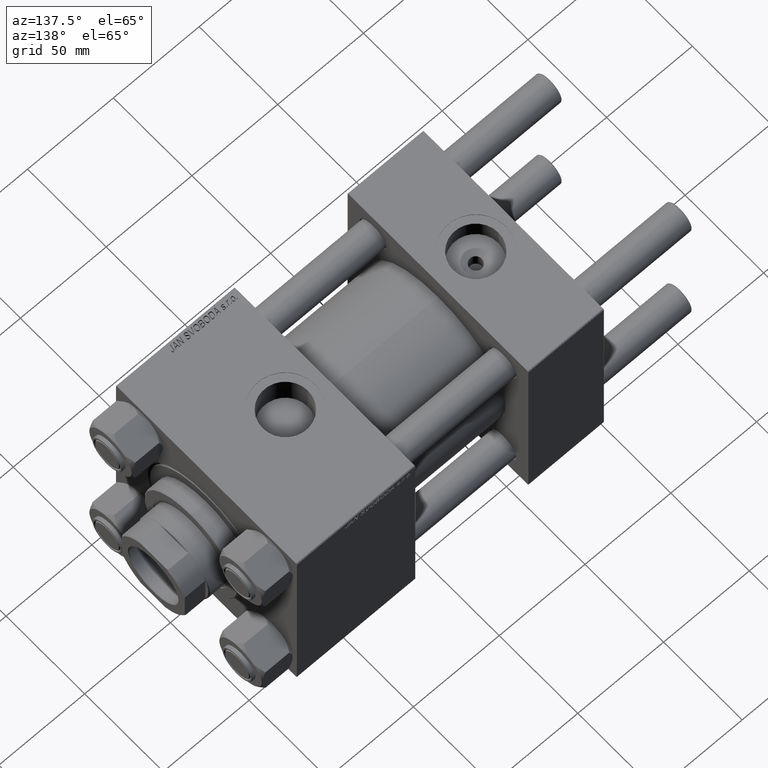
[diagram: clean part render]
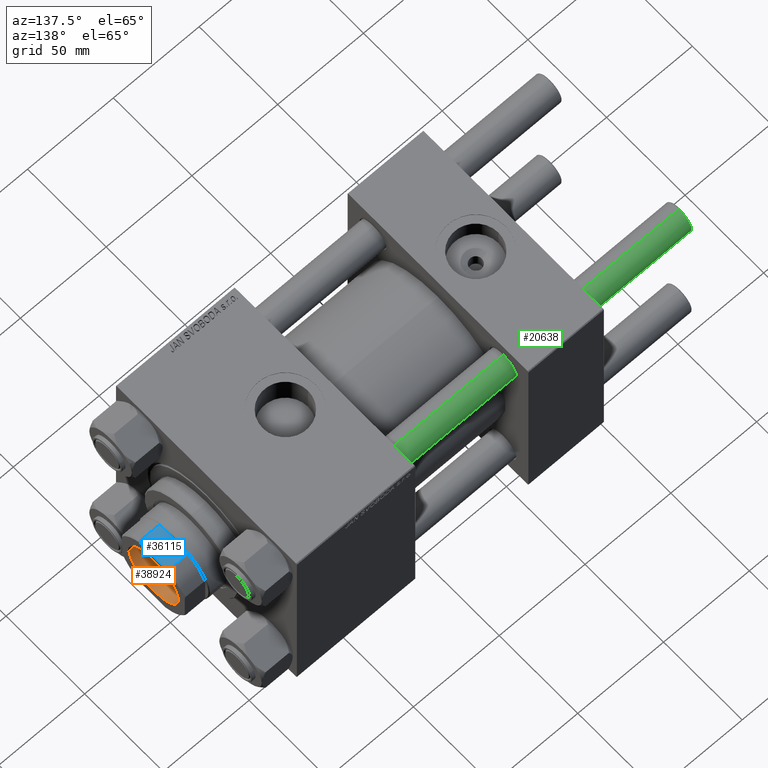
[diagram: same view with three faces highlighted in distinct colors, each labeled with its STEP entity id]
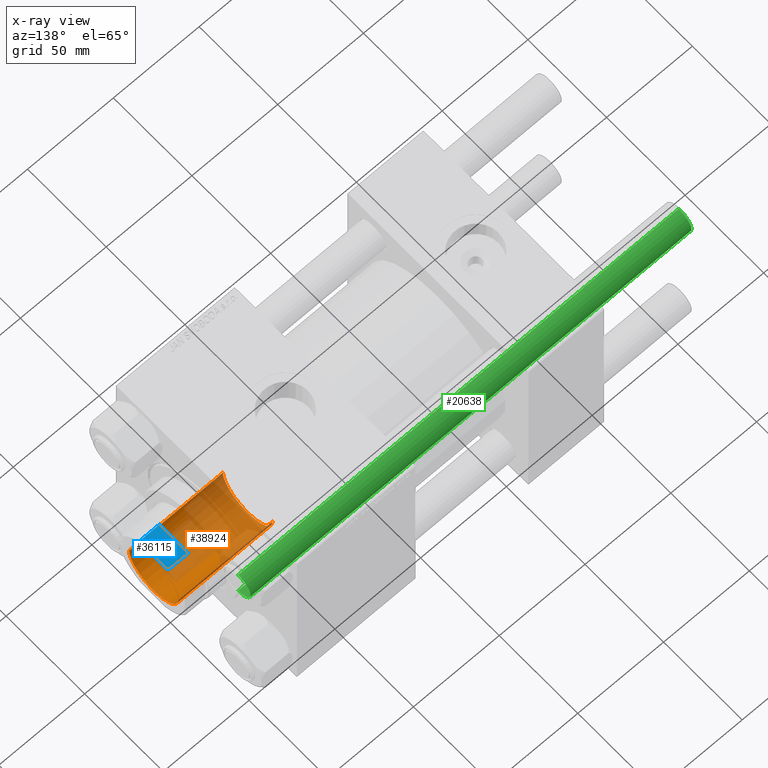
[diagram: x-ray of the same camera — body ghosted, the three highlighted faces saturated]
A machine part, auxiliary view with three faces highlighted in distinct colors.
The next image is the same camera in x-ray (body ghosted, the three faces saturated) — at least one of them is partly hidden behind the body in this view.
Their STEP definitions:

[orange] entity #38924 — the highlighted cylindrical surface (partial cylindrical patch) has radius 15.75 mm, axis along (1, 0, -0).
#182 = ORIENTED_EDGE ( 'NONE', *, *, #14030, .T. ) ;
#1155 = CARTESIAN_POINT ( 'NONE',  ( 15.74999999999999289, 0.000000000000000000, 166.0000000000000000 ) ) ;
#3708 = CARTESIAN_POINT ( 'NONE',  ( 15.74999999999998934, 0.000000000000000000, 111.0000000000000000 ) ) ;
#4863 = EDGE_CURVE ( 'NONE', #26412, #24646, #23676, .T. ) ;
#5233 = CIRCLE ( 'NONE', #12551, 15.74999999999998934 ) ;
#8029 = FACE_OUTER_BOUND ( 'NONE', #30684, .T. ) ;
#11110 = CARTESIAN_POINT ( 'NONE',  ( -15.74999999999999289, 1.928818708657080556E-15, 166.0000000000000000 ) ) ;
#11489 = AXIS2_PLACEMENT_3D ( 'NONE', #47128, #21899, #25474 ) ;
#12551 = AXIS2_PLACEMENT_3D ( 'NONE', #34554, #26951, #35066 ) ;
#14030 = EDGE_CURVE ( 'NONE', #30489, #26412, #40485, .T. ) ;
#15464 = EDGE_CURVE ( 'NONE', #30489, #23379, #5233, .T. ) ;
#21189 = DIRECTION ( 'NONE',  ( -0.000000000000000000, -0.000000000000000000, 1.000000000000000000 ) ) ;
#21195 = ORIENTED_EDGE ( 'NONE', *, *, #4863, .T. ) ;
#21899 = DIRECTION ( 'NONE',  ( -0.000000000000000000, -0.000000000000000000, 1.000000000000000000 ) ) ;
#23379 = VERTEX_POINT ( 'NONE', #43643 ) ;
#23676 = CIRCLE ( 'NONE', #28539, 15.74999999999999289 ) ;
#24646 = VERTEX_POINT ( 'NONE', #42781 ) ;
#25474 = DIRECTION ( 'NONE',  ( 1.000000000000000000, 0.000000000000000000, 0.000000000000000000 ) ) ;
#25491 = CARTESIAN_POINT ( 'NONE',  ( 0.000000000000000000, 0.000000000000000000, 165.6999999999999886 ) ) ;
#26412 = VERTEX_POINT ( 'NONE', #34024 ) ;
#26951 = DIRECTION ( 'NONE',  ( -0.000000000000000000, -0.000000000000000000, 1.000000000000000000 ) ) ;
#27387 = LINE ( 'NONE', #11110, #45415 ) ;
#28539 = AXIS2_PLACEMENT_3D ( 'NONE', #25491, #40963, #33360 ) ;
#30489 = VERTEX_POINT ( 'NONE', #3708 ) ;
#30684 = EDGE_LOOP ( 'NONE', ( #46367, #42967, #182, #21195 ) ) ;
#31266 = EDGE_CURVE ( 'NONE', #23379, #24646, #27387, .T. ) ;
#33360 = DIRECTION ( 'NONE',  ( 1.000000000000000000, 0.000000000000000000, 0.000000000000000000 ) ) ;
#34024 = CARTESIAN_POINT ( 'NONE',  ( 15.74999999999999289, 0.000000000000000000, 165.6999999999999886 ) ) ;
#34554 = CARTESIAN_POINT ( 'NONE',  ( 0.000000000000000000, 0.000000000000000000, 111.0000000000000000 ) ) ;
#35066 = DIRECTION ( 'NONE',  ( 1.000000000000000000, 0.000000000000000000, 0.000000000000000000 ) ) ;
#35468 = CYLINDRICAL_SURFACE ( 'NONE', #11489, 15.74999999999999289 ) ;
#38485 = VECTOR ( 'NONE', #21189, 1000.000000000000000 ) ;
#38924 = ADVANCED_FACE ( 'NONE', ( #8029 ), #35468, .F. ) ;
#40485 = LINE ( 'NONE', #1155, #38485 ) ;
#40963 = DIRECTION ( 'NONE',  ( 0.000000000000000000, 0.000000000000000000, 1.000000000000000000 ) ) ;
#42091 = DIRECTION ( 'NONE',  ( -0.000000000000000000, -0.000000000000000000, 1.000000000000000000 ) ) ;
#42781 = CARTESIAN_POINT ( 'NONE',  ( -15.74999999999999289, 1.928818708657080556E-15, 165.6999999999999886 ) ) ;
#42967 = ORIENTED_EDGE ( 'NONE', *, *, #15464, .F. ) ;
#43643 = CARTESIAN_POINT ( 'NONE',  ( -15.74999999999998934, 1.928818708657080161E-15, 111.0000000000000000 ) ) ;
#45415 = VECTOR ( 'NONE', #42091, 1000.000000000000000 ) ;
#46367 = ORIENTED_EDGE ( 'NONE', *, *, #31266, .F. ) ;
#47128 = CARTESIAN_POINT ( 'NONE',  ( 0.000000000000000000, 0.000000000000000000, 166.0000000000000000 ) ) ;

[blue] entity #36115 — the highlighted planar face has unit normal (-0, 0, -1).
#225 = LINE ( 'NONE', #15692, #49082 ) ;
#1440 = CARTESIAN_POINT ( 'NONE',  ( 8.318618722654486319, -20.00000000000000000, 165.8426607129352703 ) ) ;
#2146 = CARTESIAN_POINT ( 'NONE',  ( -7.889866919029998371, -20.00000000000000000, 166.0000000000000000 ) ) ;
#2383 = CARTESIAN_POINT ( 'NONE',  ( -9.165151389911676105, -20.00000000000000000, -0.001000000000001000089 ) ) ;
#2521 = CARTESIAN_POINT ( 'NONE',  ( 9.165151389911676105, -20.00000000000000000, 154.0000000000000284 ) ) ;
#4310 = ORIENTED_EDGE ( 'NONE', *, *, #18332, .T. ) ;
#4485 = CARTESIAN_POINT ( 'NONE',  ( 9.165151389911676105, -20.00000000000000000, -0.001000000000001000089 ) ) ;
#4620 = CARTESIAN_POINT ( 'NONE',  ( 9.165151389911676105, -20.00000000000000000, 165.5000000000000284 ) ) ;
#5634 = CARTESIAN_POINT ( 'NONE',  ( -19.99999999999999645, -20.00000000000000000, 166.0000000000000000 ) ) ;
#6193 = LINE ( 'NONE', #2383, #34897 ) ;
#8677 = ORIENTED_EDGE ( 'NONE', *, *, #47402, .T. ) ;
#10044 = VERTEX_POINT ( 'NONE', #2521 ) ;
#11008 = CARTESIAN_POINT ( 'NONE',  ( -8.743570658524445705, -20.00000000000000000, 165.6756296011925258 ) ) ;
#11269 = EDGE_LOOP ( 'NONE', ( #29038, #15241, #37007, #8677, #29980, #4310 ) ) ;
#14812 = CARTESIAN_POINT ( 'NONE',  ( -9.165151389911676105, -20.00000000000000000, 165.5000000000000853 ) ) ;
#14821 = CARTESIAN_POINT ( 'NONE',  ( 7.889866919029868697, -20.00000000000000000, 166.0000000000000000 ) ) ;
#15241 = ORIENTED_EDGE ( 'NONE', *, *, #29536, .T. ) ;
#15282 = DIRECTION ( 'NONE',  ( 0.000000000000000000, 1.000000000000000000, 0.000000000000000000 ) ) ;
#15692 = CARTESIAN_POINT ( 'NONE',  ( -19.99999999999999645, -20.00000000000000000, 154.0000000000000000 ) ) ;
#16145 = DIRECTION ( 'NONE',  ( -0.000000000000000000, -0.000000000000000000, 1.000000000000000000 ) ) ;
#16676 = CARTESIAN_POINT ( 'NONE',  ( 9.165151389911676105, -20.00000000000000000, 165.5000000000000284 ) ) ;
#17415 = CARTESIAN_POINT ( 'NONE',  ( 8.743570658524395967, -20.00000000000000000, 165.6756296011924974 ) ) ;
#18040 = VERTEX_POINT ( 'NONE', #45224 ) ;
#18332 = EDGE_CURVE ( 'NONE', #49750, #10044, #225, .T. ) ;
#18907 = EDGE_CURVE ( 'NONE', #18040, #42204, #32330, .T. ) ;
#19106 = CARTESIAN_POINT ( 'NONE',  ( -19.99999999999999645, -20.00000000000000000, 166.0000000000000000 ) ) ;
#22929 = PLANE ( 'NONE',  #40640 ) ;
#23850 = VERTEX_POINT ( 'NONE', #4620 ) ;
#26950 = B_SPLINE_CURVE_WITH_KNOTS ( 'NONE', 3,
 ( #16676, #17415, #1440, #28140 ),
 .UNSPECIFIED., .F., .F.,
 ( 4, 4 ),
 ( 0.000000000000000000, 0.001369799431184094826 ),
 .UNSPECIFIED. ) ;
#27942 = CARTESIAN_POINT ( 'NONE',  ( -9.165151389911676105, -20.00000000000000000, 154.0000000000000284 ) ) ;
#28140 = CARTESIAN_POINT ( 'NONE',  ( 7.889866919029868697, -20.00000000000000000, 166.0000000000000000 ) ) ;
#29038 = ORIENTED_EDGE ( 'NONE', *, *, #34459, .T. ) ;
#29536 = EDGE_CURVE ( 'NONE', #23850, #42204, #26950, .T. ) ;
#29819 = DIRECTION ( 'NONE',  ( -0.000000000000000000, -0.000000000000000000, 1.000000000000000000 ) ) ;
#29980 = ORIENTED_EDGE ( 'NONE', *, *, #30853, .F. ) ;
#30853 = EDGE_CURVE ( 'NONE', #49750, #36907, #6193, .T. ) ;
#32330 = LINE ( 'NONE', #5634, #39308 ) ;
#34430 = B_SPLINE_CURVE_WITH_KNOTS ( 'NONE', 3,
 ( #2146, #41484, #11008, #14812 ),
 .UNSPECIFIED., .F., .F.,
 ( 4, 4 ),
 ( 0.000000000000000000, 0.001369799431183951277 ),
 .UNSPECIFIED. ) ;
#34459 = EDGE_CURVE ( 'NONE', #10044, #23850, #39272, .T. ) ;
#34897 = VECTOR ( 'NONE', #29819, 1000.000000000000000 ) ;
#35011 = VECTOR ( 'NONE', #16145, 1000.000000000000000 ) ;
#36115 = ADVANCED_FACE ( 'NONE', ( #42717 ), #22929, .F. ) ;
#36907 = VERTEX_POINT ( 'NONE', #45521 ) ;
#37007 = ORIENTED_EDGE ( 'NONE', *, *, #18907, .F. ) ;
#39272 = LINE ( 'NONE', #4485, #35011 ) ;
#39308 = VECTOR ( 'NONE', #39941, 1000.000000000000000 ) ;
#39941 = DIRECTION ( 'NONE',  ( 1.000000000000000000, 0.000000000000000000, 0.000000000000000000 ) ) ;
#40640 = AXIS2_PLACEMENT_3D ( 'NONE', #19106, #15282, #48441 ) ;
#41484 = CARTESIAN_POINT ( 'NONE',  ( -8.318618722654575137, -20.00000000000000000, 165.8426607129352703 ) ) ;
#42204 = VERTEX_POINT ( 'NONE', #14821 ) ;
#42717 = FACE_OUTER_BOUND ( 'NONE', #11269, .T. ) ;
#42861 = DIRECTION ( 'NONE',  ( 1.000000000000000000, 0.000000000000000000, 0.000000000000000000 ) ) ;
#45224 = CARTESIAN_POINT ( 'NONE',  ( -7.889866919029998371, -20.00000000000000000, 166.0000000000000000 ) ) ;
#45521 = CARTESIAN_POINT ( 'NONE',  ( -9.165151389911676105, -20.00000000000000000, 165.5000000000000853 ) ) ;
#47402 = EDGE_CURVE ( 'NONE', #18040, #36907, #34430, .T. ) ;
#48441 = DIRECTION ( 'NONE',  ( 0.000000000000000000, -0.000000000000000000, 1.000000000000000000 ) ) ;
#49082 = VECTOR ( 'NONE', #42861, 1000.000000000000000 ) ;
#49750 = VERTEX_POINT ( 'NONE', #27942 ) ;

[green] entity #20638 — the highlighted cylindrical surface (edge-blend (fillet) strip) has radius 8 mm, axis along (-1, -0, -0).
#236 = EDGE_CURVE ( 'NONE', #31833, #16070, #10391, .T. ) ;
#1217 = VERTEX_POINT ( 'NONE', #21343 ) ;
#3014 = LINE ( 'NONE', #42108, #9349 ) ;
#3699 = CARTESIAN_POINT ( 'NONE',  ( 8.000000000000000000, 9.797174393178825657E-16, 0.4999999999999449329 ) ) ;
#8090 = AXIS2_PLACEMENT_3D ( 'NONE', #12113, #42603, #43094 ) ;
#8554 = AXIS2_PLACEMENT_3D ( 'NONE', #14192, #29209, #29462 ) ;
#9349 = VECTOR ( 'NONE', #34002, 1000.000000000000000 ) ;
#10391 = LINE ( 'NONE', #13448, #11316 ) ;
#10507 = CIRCLE ( 'NONE', #8090, 8.000000000000000000 ) ;
#11316 = VECTOR ( 'NONE', #18022, 1000.000000000000000 ) ;
#12113 = CARTESIAN_POINT ( 'NONE',  ( 0.000000000000000000, 0.000000000000000000, 257.4999999999999432 ) ) ;
#13448 = CARTESIAN_POINT ( 'NONE',  ( 8.000000000000000000, 9.797174393178825657E-16, 258.0000000000000000 ) ) ;
#14192 = CARTESIAN_POINT ( 'NONE',  ( 0.000000000000000000, 0.000000000000000000, 0.4999999999999449329 ) ) ;
#16070 = VERTEX_POINT ( 'NONE', #3699 ) ;
#16088 = CARTESIAN_POINT ( 'NONE',  ( -8.000000000000000000, 0.000000000000000000, 257.4999999999999432 ) ) ;
#16950 = ORIENTED_EDGE ( 'NONE', *, *, #47885, .T. ) ;
#18022 = DIRECTION ( 'NONE',  ( -0.000000000000000000, -0.000000000000000000, -1.000000000000000000 ) ) ;
#18372 = ORIENTED_EDGE ( 'NONE', *, *, #29409, .T. ) ;
#20638 = ADVANCED_FACE ( 'NONE', ( #47845 ), #20937, .T. ) ;
#20937 = CYLINDRICAL_SURFACE ( 'NONE', #34588, 8.000000000000000000 ) ;
#21343 = CARTESIAN_POINT ( 'NONE',  ( -8.000000000000000000, 0.000000000000000000, 0.4999999999999449329 ) ) ;
#24273 = DIRECTION ( 'NONE',  ( -0.000000000000000000, -0.000000000000000000, -1.000000000000000000 ) ) ;
#28334 = CARTESIAN_POINT ( 'NONE',  ( 0.000000000000000000, 0.000000000000000000, 258.0000000000000000 ) ) ;
#29209 = DIRECTION ( 'NONE',  ( -0.000000000000000000, -0.000000000000000000, 1.000000000000000000 ) ) ;
#29409 = EDGE_CURVE ( 'NONE', #49307, #31833, #10507, .T. ) ;
#29462 = DIRECTION ( 'NONE',  ( 1.000000000000000000, 0.000000000000000000, 0.000000000000000000 ) ) ;
#31833 = VERTEX_POINT ( 'NONE', #35069 ) ;
#31951 = ORIENTED_EDGE ( 'NONE', *, *, #47112, .F. ) ;
#34002 = DIRECTION ( 'NONE',  ( -0.000000000000000000, -0.000000000000000000, -1.000000000000000000 ) ) ;
#34588 = AXIS2_PLACEMENT_3D ( 'NONE', #28334, #24273, #47606 ) ;
#35069 = CARTESIAN_POINT ( 'NONE',  ( 8.000000000000000000, 9.797174393178825657E-16, 257.4999999999999432 ) ) ;
#42108 = CARTESIAN_POINT ( 'NONE',  ( -8.000000000000000000, 0.000000000000000000, 258.0000000000000000 ) ) ;
#42603 = DIRECTION ( 'NONE',  ( 0.000000000000000000, 0.000000000000000000, -1.000000000000000000 ) ) ;
#43094 = DIRECTION ( 'NONE',  ( 1.000000000000000000, 0.000000000000000000, 0.000000000000000000 ) ) ;
#44324 = EDGE_LOOP ( 'NONE', ( #18372, #50033, #16950, #31951 ) ) ;
#45849 = CIRCLE ( 'NONE', #8554, 8.000000000000000000 ) ;
#47112 = EDGE_CURVE ( 'NONE', #49307, #1217, #3014, .T. ) ;
#47606 = DIRECTION ( 'NONE',  ( -1.000000000000000000, 0.000000000000000000, 0.000000000000000000 ) ) ;
#47845 = FACE_OUTER_BOUND ( 'NONE', #44324, .T. ) ;
#47885 = EDGE_CURVE ( 'NONE', #16070, #1217, #45849, .T. ) ;
#49307 = VERTEX_POINT ( 'NONE', #16088 ) ;
#50033 = ORIENTED_EDGE ( 'NONE', *, *, #236, .T. ) ;